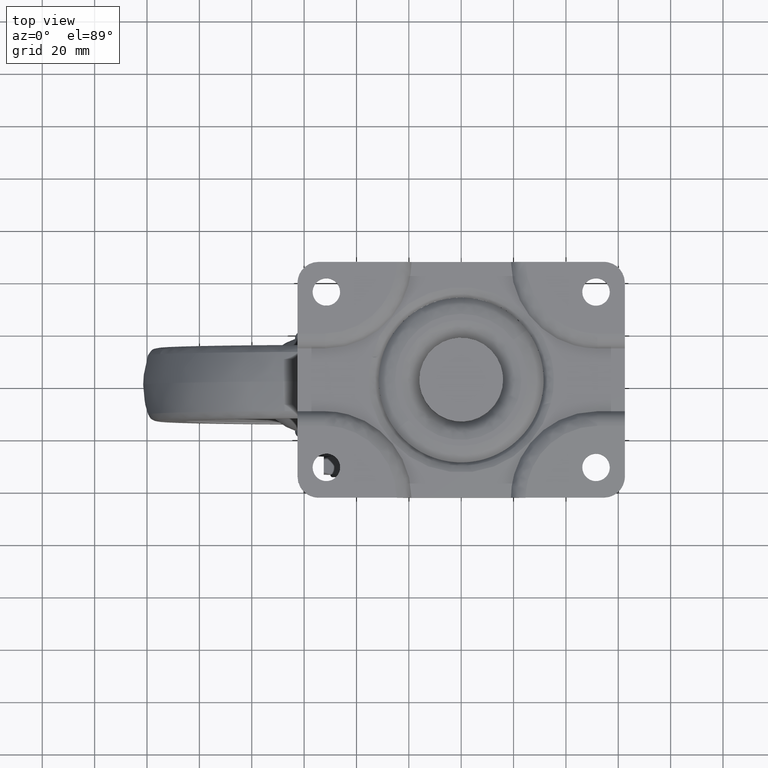
[diagram: clean part render]
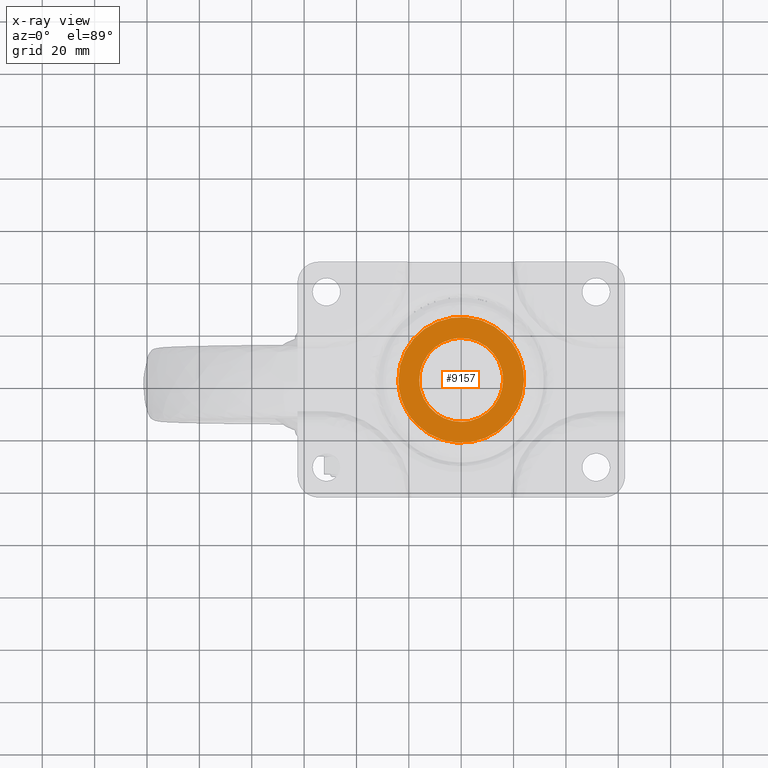
[diagram: x-ray — body ghosted, one internal face saturated and labeled with its STEP entity id]
A machine part, top view, then the same camera in x-ray: the body is ghosted and one INTERNAL B-rep face — a face not visible from any outside direction — is saturated and labeled: STEP entity #9157.
In plain terms, the highlighted face is a freeform B-spline surface patch.
Its self-contained STEP definition (entity closure, byte-faithful):
#9004=CARTESIAN_POINT('',(26.408611005827989,-26.392265565884390,-8.0));
#9005=CARTESIAN_POINT('',(-26.408612293825350,-26.392265565884390,-8.0));
#9006=CARTESIAN_POINT('',(26.408611005827989,26.392266853084578,-8.0));
#9007=CARTESIAN_POINT('',(-26.408612293825350,26.392266853084578,-8.0));
#9008=B_SPLINE_SURFACE_WITH_KNOTS('',1,1,((#9004,#9006),(#9005,#9007)),.UNSPECIFIED.,.F.,.F.,.U.,(2,2),(2,2),(0.0,52.817223299653342),(0.0,52.784532418968972),.UNSPECIFIED.);
#9009=CARTESIAN_POINT('',(-21.461142434700161,-10.765685955556011,-8.0));
#9010=VERTEX_POINT('',#9009);
#9011=CARTESIAN_POINT('',(-24.010011000000102,1.421085E-014,-8.0));
#9012=VERTEX_POINT('',#9011);
#9013=CARTESIAN_POINT('',(-21.461142434700161,-10.765685955556009,-8.0));
#9014=CARTESIAN_POINT('',(-24.010011004430389,-5.684576236478177,-8.0));
#9015=CARTESIAN_POINT('',(-24.010011000000102,1.421085E-014,-8.0));
#9023=(BOUNDED_CURVE()B_SPLINE_CURVE(2,(#9013,#9014,#9015),.UNSPECIFIED.,.F.,.U.)B_SPLINE_CURVE_WITH_KNOTS((3,3),(0.923769062111591,1.0),.UNSPECIFIED.)CURVE()GEOMETRIC_REPRESENTATION_ITEM()RATIONAL_B_SPLINE_CURVE((0.875845342758947,0.910689900914782,1.0))REPRESENTATION_ITEM(''));
#9024=EDGE_CURVE('',#9010,#9012,#9023,.T.);
#9025=ORIENTED_EDGE('',*,*,#9024,.F.);
#9026=CARTESIAN_POINT('',(24.010011000000102,1.421085E-014,-8.0));
#9027=VERTEX_POINT('',#9026);
#9028=CARTESIAN_POINT('',(24.010011000000102,1.421085E-014,-8.0));
#9029=CARTESIAN_POINT('',(24.010569328416619,-2.008365882442808,-8.000000000000012));
#9030=CARTESIAN_POINT('',(23.608533755732740,-5.187815900375817,-7.999999999999992));
#9031=CARTESIAN_POINT('',(22.058788001391179,-9.800986927973852,-8.000000000000004));
#9032=CARTESIAN_POINT('',(20.075486624388059,-13.415359796526619,-8.000000000000044));
#9033=CARTESIAN_POINT('',(17.686003062491299,-16.340759074119489,-8.000000000000028));
#9034=CARTESIAN_POINT('',(15.184582302860530,-18.695815582375420,-7.999999999999973));
#9035=CARTESIAN_POINT('',(12.654686053126600,-20.499410656803271,-8.000000000000053));
#9036=CARTESIAN_POINT('',(9.752373485953244,-22.003594088823320,-7.999999999999961));
#9037=CARTESIAN_POINT('',(6.768231255345261,-23.119875648729909,-8.000000000000082));
#9038=CARTESIAN_POINT('',(3.243432442498031,-23.896314016286599,-7.999999999999890));
#9039=CARTESIAN_POINT('',(-0.445826559488764,-24.098384874208179,-8.000000000000153));
#9040=CARTESIAN_POINT('',(-3.618029841549871,-23.790034771890362,-7.999999999999831));
#9041=CARTESIAN_POINT('',(-6.648298069342472,-23.138200740557231,-7.999999999999961));
#9042=CARTESIAN_POINT('',(-9.737349052762795,-22.054741044558650,-8.000000000000123));
#9043=CARTESIAN_POINT('',(-13.506100144142509,-20.024397317739680,-7.999999999999830));
#9044=CARTESIAN_POINT('',(-16.838153881751118,-17.316865703147219,-8.000000000000204));
#9045=CARTESIAN_POINT('',(-19.596350503092388,-14.043001407924860,-7.999999999999726));
#9046=CARTESIAN_POINT('',(-20.898402232874378,-11.887662739888921,-8.000000000000274));
#9047=CARTESIAN_POINT('',(-21.461142434700161,-10.765685955556011,-8.0));
#9048=B_SPLINE_CURVE_WITH_KNOTS('',3,(#9028,#9029,#9030,#9031,#9032,#9033,#9034,#9035,#9036,#9037,#9038,#9039,#9040,#9041,#9042,#9043,#9044,#9045,#9046,#9047),.UNSPECIFIED.,.F.,.U.,(4,1,1,1,1,1,1,1,1,1,1,1,1,1,1,1,1,4),(0.000000131924423,6.024902324570626,9.539469947481322,14.560338474332060,18.325980344854301,20.836409961365831,24.853089174647579,27.614498771806119,30.627032526562630,34.392620402613879,38.409224641925647,41.672723583281893,43.932079350113547,47.697710291230763,51.463304639732073,56.735171396494287,60.500791015113577,64.266375119990172),.UNSPECIFIED.);
#9049=EDGE_CURVE('',#9027,#9010,#9048,.T.);
#9050=ORIENTED_EDGE('',*,*,#9049,.F.);
#9051=CARTESIAN_POINT('',(21.461142434700161,10.765685955556030,-8.0));
#9052=VERTEX_POINT('',#9051);
#9053=CARTESIAN_POINT('',(21.461142434700164,10.765685955556034,-8.0));
#9054=CARTESIAN_POINT('',(24.010011004430389,5.684576236478200,-8.0));
#9055=CARTESIAN_POINT('',(24.010011000000102,1.421085E-014,-8.0));
#9063=(BOUNDED_CURVE()B_SPLINE_CURVE(2,(#9053,#9054,#9055),.UNSPECIFIED.,.F.,.U.)B_SPLINE_CURVE_WITH_KNOTS((3,3),(0.423769062111591,0.500000000000000),.UNSPECIFIED.)CURVE()GEOMETRIC_REPRESENTATION_ITEM()RATIONAL_B_SPLINE_CURVE((0.875845342758947,0.910689900914782,1.0))REPRESENTATION_ITEM(''));
#9064=EDGE_CURVE('',#9052,#9027,#9063,.T.);
#9065=ORIENTED_EDGE('',*,*,#9064,.F.);
#9066=CARTESIAN_POINT('',(-24.010011000000102,1.421085E-014,-8.0));
#9067=CARTESIAN_POINT('',(-24.010248011212742,1.673579064211899,-7.999999999999980));
#9068=CARTESIAN_POINT('',(-23.711317091525672,4.518587272163022,-8.000000000000043));
#9069=CARTESIAN_POINT('',(-22.706162209260050,7.983607341188719,-7.999999999999952));
#9070=CARTESIAN_POINT('',(-21.327921302146081,11.220938191277099,-8.000000000000039));
#9071=CARTESIAN_POINT('',(-19.397355147140750,14.377464024389861,-7.999999999999970));
#9072=CARTESIAN_POINT('',(-16.703535551946509,17.375839670026998,-8.000000000000012));
#9073=CARTESIAN_POINT('',(-13.462092364251170,20.036752056773601,-7.999999999999973));
#9074=CARTESIAN_POINT('',(-9.567106933246642,22.213197228211069,-8.000000000000078));
#9075=CARTESIAN_POINT('',(-4.988367574558398,23.631597051467349,-7.999999999999843));
#9076=CARTESIAN_POINT('',(-1.148209784105239,24.064269969644400,-8.000000000000069));
#9077=CARTESIAN_POINT('',(2.369654251053425,23.962464001913940,-7.999999999999976));
#9078=CARTESIAN_POINT('',(6.015953386942234,23.375684541844620,-8.000000000000011));
#9079=CARTESIAN_POINT('',(9.507473825189182,22.150992788463402,-8.000000000000002));
#9080=CARTESIAN_POINT('',(12.688360029971379,20.458395697678519,-7.999999999999995));
#9081=CARTESIAN_POINT('',(15.019360106850440,18.813853049001189,-8.000000000000027));
#9082=CARTESIAN_POINT('',(17.432909038809640,16.610541159047870,-7.999999999999906));
#9083=CARTESIAN_POINT('',(19.596390740707701,14.043050786854259,-8.000000000000226));
#9084=CARTESIAN_POINT('',(20.898400773281889,11.887661605404970,-7.999999999999804));
#9085=CARTESIAN_POINT('',(21.461142434700161,10.765685955556030,-8.0));
#9086=B_SPLINE_CURVE_WITH_KNOTS('',3,(#9066,#9067,#9068,#9069,#9070,#9071,#9072,#9073,#9074,#9075,#9076,#9077,#9078,#9079,#9080,#9081,#9082,#9083,#9084,#9085),.UNSPECIFIED.,.F.,.U.,(4,1,1,1,1,1,1,1,1,1,1,1,1,1,1,1,1,4),(0.000000131923329,5.020710673855227,8.535364154117296,10.794701659897999,15.564519456975470,19.581189673877891,22.844749445838680,28.116632123850898,32.886433523668948,37.154141764614486,39.664419606611389,43.430031914233801,48.199770796680298,50.710193023574213,54.224769039443842,56.735171396493961,60.500791015113450,64.266375119990201),.UNSPECIFIED.);
#9087=EDGE_CURVE('',#9012,#9052,#9086,.T.);
#9088=ORIENTED_EDGE('',*,*,#9087,.F.);
#9089=EDGE_LOOP('',(#9025,#9050,#9065,#9088));
#9090=FACE_OUTER_BOUND('',#9089,.T.);
#9091=CARTESIAN_POINT('',(-16.000322000000100,0.0,-8.0));
#9092=VERTEX_POINT('',#9091);
#9093=CARTESIAN_POINT('',(-0.139946568229463,15.999390769024510,-8.0));
#9094=VERTEX_POINT('',#9093);
#9095=CARTESIAN_POINT('',(-16.000322000000100,0.0,-8.0));
#9096=CARTESIAN_POINT('',(-16.000322000000097,15.860979369266460,-8.0));
#9097=CARTESIAN_POINT('',(-0.139946568229465,15.999390769024515,-8.0));
#9105=(BOUNDED_CURVE()B_SPLINE_CURVE(2,(#9095,#9096,#9097),.UNSPECIFIED.,.F.,.U.)B_SPLINE_CURVE_WITH_KNOTS((3,3),(0.0,0.248460105662201),.UNSPECIFIED.)CURVE()GEOMETRIC_REPRESENTATION_ITEM()RATIONAL_B_SPLINE_CURVE((1.0,0.708910879623470,0.996414028093899))REPRESENTATION_ITEM(''));
#9106=EDGE_CURVE('',#9092,#9094,#9105,.T.);
#9107=ORIENTED_EDGE('',*,*,#9106,.T.);
#9108=CARTESIAN_POINT('',(15.999677999999900,0.0,-8.0));
#9109=VERTEX_POINT('',#9108);
#9110=CARTESIAN_POINT('',(-0.139946568229465,15.999390769024515,-8.0));
#9111=CARTESIAN_POINT('',(-0.070135613259022,16.000000000000004,-8.0));
#9112=CARTESIAN_POINT('',(-0.000322000000097,16.0,-8.0));
#9113=CARTESIAN_POINT('',(15.999677999999903,15.999999999999998,-8.0));
#9114=CARTESIAN_POINT('',(15.999677999999900,0.0,-8.0));
#9122=(BOUNDED_CURVE()B_SPLINE_CURVE(2,(#9110,#9111,#9112,#9113,#9114),.UNSPECIFIED.,.F.,.U.)B_SPLINE_CURVE_WITH_KNOTS((3,2,3),(0.248460105662201,0.250000000000000,0.500000000000000),.UNSPECIFIED.)CURVE()GEOMETRIC_REPRESENTATION_ITEM()RATIONAL_B_SPLINE_CURVE((0.996414028093899,0.998195901563078,1.0,0.707106781186548,1.0))REPRESENTATION_ITEM(''));
#9123=EDGE_CURVE('',#9094,#9109,#9122,.T.);
#9124=ORIENTED_EDGE('',*,*,#9123,.T.);
#9125=CARTESIAN_POINT('',(0.139302568229274,-15.999390769024510,-8.0));
#9126=VERTEX_POINT('',#9125);
#9127=CARTESIAN_POINT('',(15.999677999999900,0.0,-8.0));
#9128=CARTESIAN_POINT('',(15.999677999999909,-15.860979369266460,-8.0));
#9129=CARTESIAN_POINT('',(0.139302568229274,-15.999390769024515,-8.0));
#9137=(BOUNDED_CURVE()B_SPLINE_CURVE(2,(#9127,#9128,#9129),.UNSPECIFIED.,.F.,.U.)B_SPLINE_CURVE_WITH_KNOTS((3,3),(0.500000000000000,0.748460105662201),.UNSPECIFIED.)CURVE()GEOMETRIC_REPRESENTATION_ITEM()RATIONAL_B_SPLINE_CURVE((1.0,0.708910879623470,0.996414028093899))REPRESENTATION_ITEM(''));
#9138=EDGE_CURVE('',#9109,#9126,#9137,.T.);
#9139=ORIENTED_EDGE('',*,*,#9138,.T.);
#9140=CARTESIAN_POINT('',(0.139302568229274,-15.999390769024515,-8.0));
#9141=CARTESIAN_POINT('',(0.069491613258830,-16.000000000000004,-8.0));
#9142=CARTESIAN_POINT('',(-0.000322000000097,-16.0,-8.0));
#9143=CARTESIAN_POINT('',(-16.000322000000093,-15.999999999999998,-8.0));
#9144=CARTESIAN_POINT('',(-16.000322000000100,0.0,-8.0));
#9152=(BOUNDED_CURVE()B_SPLINE_CURVE(2,(#9140,#9141,#9142,#9143,#9144),.UNSPECIFIED.,.F.,.U.)B_SPLINE_CURVE_WITH_KNOTS((3,2,3),(0.748460105662201,0.750000000000000,1.0),.UNSPECIFIED.)CURVE()GEOMETRIC_REPRESENTATION_ITEM()RATIONAL_B_SPLINE_CURVE((0.996414028093899,0.998195901563078,1.0,0.707106781186548,1.0))REPRESENTATION_ITEM(''));
#9153=EDGE_CURVE('',#9126,#9092,#9152,.T.);
#9154=ORIENTED_EDGE('',*,*,#9153,.T.);
#9155=EDGE_LOOP('',(#9107,#9124,#9139,#9154));
#9156=FACE_BOUND('',#9155,.T.);
#9157=ADVANCED_FACE('',(#9090,#9156),#9008,.F.);